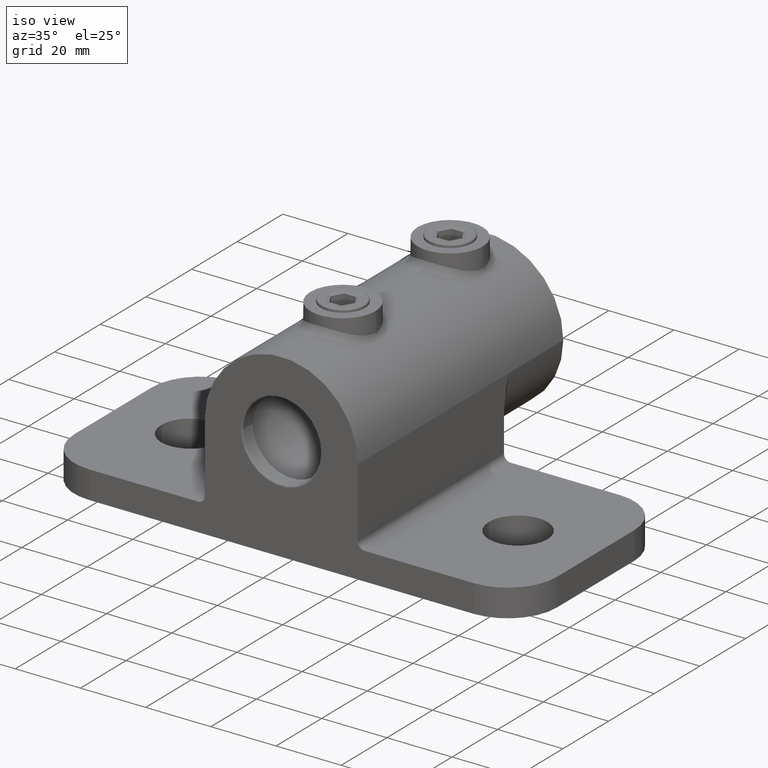
[diagram: clean part render]
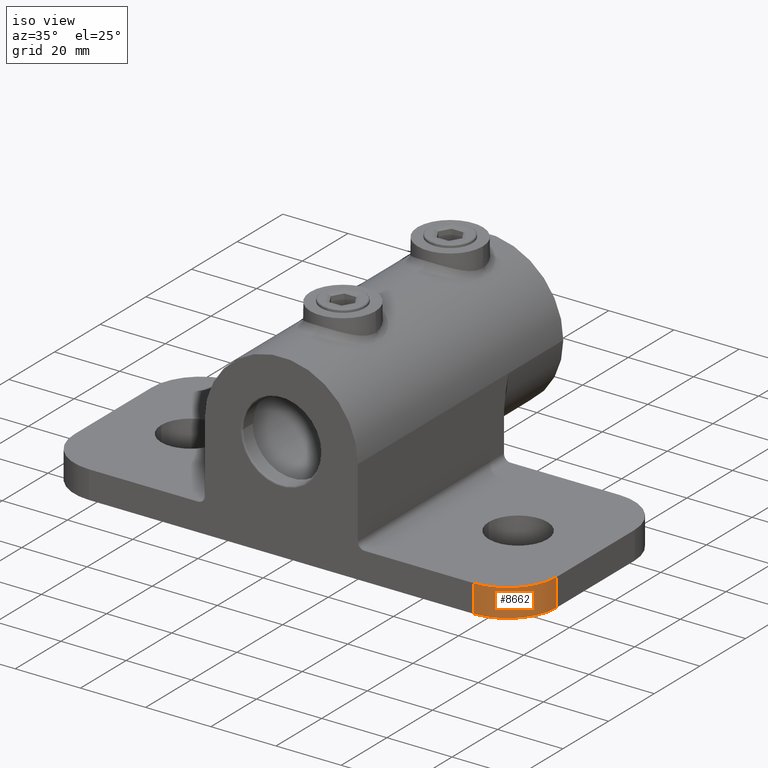
[diagram: same view with one face highlighted and labeled with its STEP entity id]
A machine part, iso view. The second image highlights one B-rep face of the part: STEP entity #8662.
In plain terms, the highlighted cylindrical surface (partial cylindrical patch) has radius 15 mm, axis along (0, 0, -1).
Its self-contained STEP definition (entity closure, byte-faithful):
#404 = EDGE_CURVE ( 'NONE', #2618, #3641, #14750, .T. ) ;
#2369 = CARTESIAN_POINT ( 'NONE',  ( 74.00000000000000000, -17.00000000000001400, 8.500000000000000000 ) ) ;
#2434 = FACE_OUTER_BOUND ( 'NONE', #12383, .T. ) ;
#2618 = VERTEX_POINT ( 'NONE', #6836 ) ;
#3299 = DIRECTION ( 'NONE',  ( 0.0000000000000000000, 0.0000000000000000000, 1.000000000000000000 ) ) ;
#3336 = CARTESIAN_POINT ( 'NONE',  ( 59.00000000000001400, -32.00000000000001400, 0.0000000000000000000 ) ) ;
#3426 = ORIENTED_EDGE ( 'NONE', *, *, #3993, .F. ) ;
#3641 = VERTEX_POINT ( 'NONE', #11688 ) ;
#3993 = EDGE_CURVE ( 'NONE', #3641, #9840, #7948, .T. ) ;
#4957 = DIRECTION ( 'NONE',  ( 0.0000000000000000000, 0.0000000000000000000, -1.000000000000000000 ) ) ;
#5634 = VERTEX_POINT ( 'NONE', #3336 ) ;
#5703 = EDGE_CURVE ( 'NONE', #9840, #5634, #14037, .T. ) ;
#6015 = DIRECTION ( 'NONE',  ( 0.0000000000000000000, 0.0000000000000000000, -1.000000000000000000 ) ) ;
#6234 = EDGE_CURVE ( 'NONE', #5634, #2618, #7911, .T. ) ;
#6836 = CARTESIAN_POINT ( 'NONE',  ( 59.00000000000001400, -32.00000000000001400, 8.500000000000000000 ) ) ;
#6917 = AXIS2_PLACEMENT_3D ( 'NONE', #14317, #3299, #8241 ) ;
#7364 = CARTESIAN_POINT ( 'NONE',  ( 59.00000000000001400, -32.00000000000001400, 8.500000000000000000 ) ) ;
#7911 = LINE ( 'NONE', #7364, #12132 ) ;
#7948 = LINE ( 'NONE', #2369, #12918 ) ;
#8241 = DIRECTION ( 'NONE',  ( 1.000000000000000000, 0.0000000000000000000, 0.0000000000000000000 ) ) ;
#8662 = ADVANCED_FACE ( 'NONE', ( #2434 ), #14082, .T. ) ;
#8836 = DIRECTION ( 'NONE',  ( -1.000000000000000000, 0.0000000000000000000, 0.0000000000000000000 ) ) ;
#8906 = ORIENTED_EDGE ( 'NONE', *, *, #5703, .F. ) ;
#9840 = VERTEX_POINT ( 'NONE', #15715 ) ;
#9845 = ORIENTED_EDGE ( 'NONE', *, *, #6234, .F. ) ;
#10239 = AXIS2_PLACEMENT_3D ( 'NONE', #14852, #4957, #8836 ) ;
#10736 = AXIS2_PLACEMENT_3D ( 'NONE', #10993, #13386, #10901 ) ;
#10901 = DIRECTION ( 'NONE',  ( 1.000000000000000000, 0.0000000000000000000, 0.0000000000000000000 ) ) ;
#10993 = CARTESIAN_POINT ( 'NONE',  ( 59.00000000000000000, -17.00000000000001400, 0.0000000000000000000 ) ) ;
#11688 = CARTESIAN_POINT ( 'NONE',  ( 74.00000000000000000, -17.00000000000001400, 8.500000000000000000 ) ) ;
#12132 = VECTOR ( 'NONE', #14657, 1000.000000000000000 ) ;
#12383 = EDGE_LOOP ( 'NONE', ( #15869, #9845, #8906, #3426 ) ) ;
#12918 = VECTOR ( 'NONE', #6015, 1000.000000000000000 ) ;
#13386 = DIRECTION ( 'NONE',  ( -0.0000000000000000000, -0.0000000000000000000, -1.000000000000000000 ) ) ;
#14037 = CIRCLE ( 'NONE', #10736, 15.00000000000000000 ) ;
#14082 = CYLINDRICAL_SURFACE ( 'NONE', #10239, 15.00000000000000000 ) ;
#14317 = CARTESIAN_POINT ( 'NONE',  ( 59.00000000000000000, -17.00000000000001400, 8.500000000000000000 ) ) ;
#14657 = DIRECTION ( 'NONE',  ( -0.0000000000000000000, -0.0000000000000000000, 1.000000000000000000 ) ) ;
#14750 = CIRCLE ( 'NONE', #6917, 15.00000000000000000 ) ;
#14852 = CARTESIAN_POINT ( 'NONE',  ( 59.00000000000000000, -17.00000000000001400, 8.500000000000000000 ) ) ;
#15715 = CARTESIAN_POINT ( 'NONE',  ( 74.00000000000000000, -17.00000000000001400, 0.0000000000000000000 ) ) ;
#15869 = ORIENTED_EDGE ( 'NONE', *, *, #404, .F. ) ;